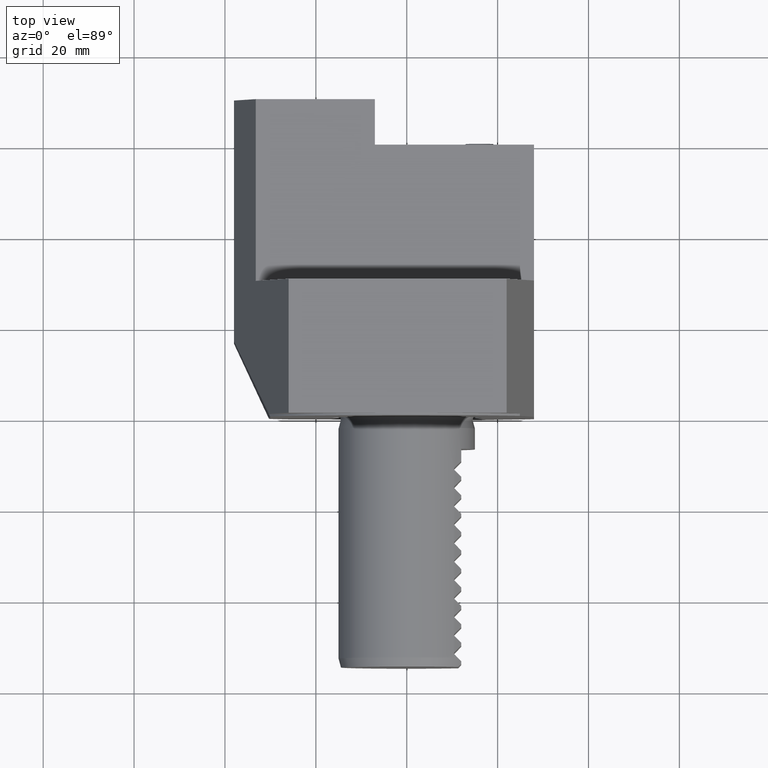
[diagram: clean part render]
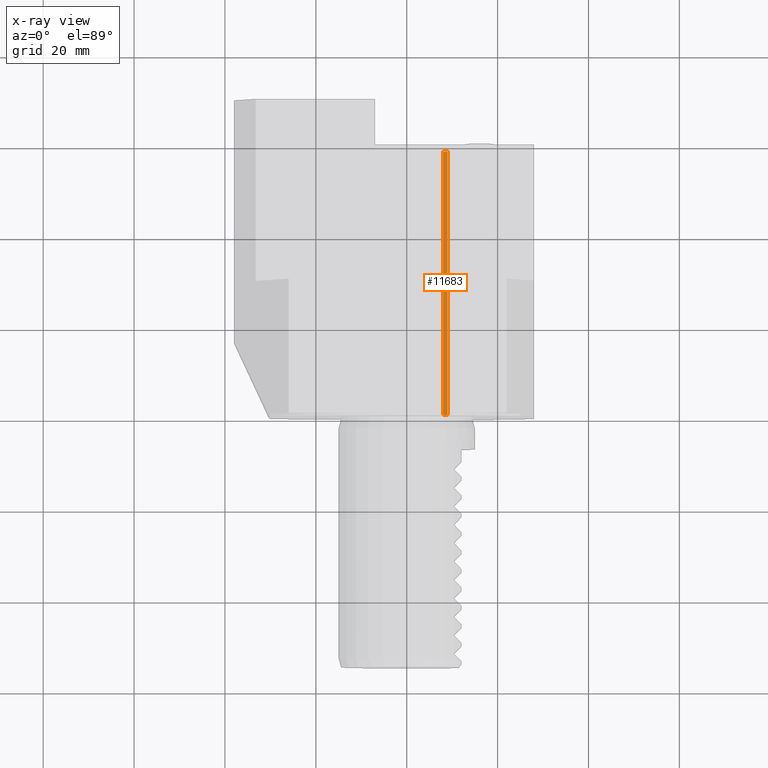
[diagram: x-ray — body ghosted, one internal face saturated and labeled with its STEP entity id]
A machine part, top view, then the same camera in x-ray: the body is ghosted and one INTERNAL B-rep face — a face not visible from any outside direction — is saturated and labeled: STEP entity #11683.
In plain terms, the highlighted planar face has unit normal (-0, 0, 1).
Its self-contained STEP definition (entity closure, byte-faithful):
#146 = FACE_OUTER_BOUND ( 'NONE', #8801, .T. ) ;
#441 = VERTEX_POINT ( 'NONE', #3247 ) ;
#484 = CARTESIAN_POINT ( 'NONE',  ( 7.999999999999991118, 0.9999999999999904521, -24.29999999999998295 ) ) ;
#1347 = VECTOR ( 'NONE', #16303, 1000.000000000000000 ) ;
#1457 = CARTESIAN_POINT ( 'NONE',  ( 69.16643582596528006, 0.9999999999999904521, -24.29999999999998295 ) ) ;
#2115 = EDGE_CURVE ( 'NONE', #441, #3762, #4510, .T. ) ;
#2196 = CARTESIAN_POINT ( 'NONE',  ( 69.16643582596528006, 58.99999999999998579, -24.29999999999998295 ) ) ;
#2717 = DIRECTION ( 'NONE',  ( -1.000000000000000000, 8.090834635592246831E-33, -1.493403808601844500E-49 ) ) ;
#2856 = PLANE ( 'NONE',  #6642 ) ;
#3247 = CARTESIAN_POINT ( 'NONE',  ( 9.000000000000001776, 0.9999999999999904521, -24.29999999999998295 ) ) ;
#3762 = VERTEX_POINT ( 'NONE', #11370 ) ;
#4116 = DIRECTION ( 'NONE',  ( -1.493403808601844500E-49, 1.208288325956117799E-81, 1.000000000000000000 ) ) ;
#4510 = LINE ( 'NONE', #11927, #14870 ) ;
#4576 = VERTEX_POINT ( 'NONE', #484 ) ;
#4896 = LINE ( 'NONE', #5064, #8833 ) ;
#5064 = CARTESIAN_POINT ( 'NONE',  ( 69.16643582596528006, 0.9999999999999904521, -24.29999999999998295 ) ) ;
#6592 = ORIENTED_EDGE ( 'NONE', *, *, #15625, .F. ) ;
#6642 = AXIS2_PLACEMENT_3D ( 'NONE', #1457, #4116, #14071 ) ;
#6935 = DIRECTION ( 'NONE',  ( -1.295371175675670527E-16, 1.000000000000000000, -1.934512247307095566E-65 ) ) ;
#7275 = DIRECTION ( 'NONE',  ( -1.000000000000000000, 8.090834635592246831E-33, -1.493403808601844500E-49 ) ) ;
#7390 = CARTESIAN_POINT ( 'NONE',  ( 7.999999999999991118, 60.00000000000000000, -24.29999999999998295 ) ) ;
#8801 = EDGE_LOOP ( 'NONE', ( #10893, #15182, #6592, #13257 ) ) ;
#8833 = VECTOR ( 'NONE', #2717, 1000.000000000000000 ) ;
#9061 = CARTESIAN_POINT ( 'NONE',  ( 7.999999999999991118, 58.99999999999998579, -24.29999999999998295 ) ) ;
#10366 = VERTEX_POINT ( 'NONE', #9061 ) ;
#10893 = ORIENTED_EDGE ( 'NONE', *, *, #15783, .T. ) ;
#11370 = CARTESIAN_POINT ( 'NONE',  ( 8.999999999999994671, 58.99999999999998579, -24.29999999999998295 ) ) ;
#11683 = ADVANCED_FACE ( 'NONE', ( #146 ), #2856, .T. ) ;
#11927 = CARTESIAN_POINT ( 'NONE',  ( 9.000000000000001776, 0.9999999999999826805, -24.29999999999998295 ) ) ;
#12056 = EDGE_CURVE ( 'NONE', #10366, #4576, #15042, .T. ) ;
#13257 = ORIENTED_EDGE ( 'NONE', *, *, #2115, .T. ) ;
#14071 = DIRECTION ( 'NONE',  ( 1.000000000000000000, 0.000000000000000000, 1.493403808601844500E-49 ) ) ;
#14870 = VECTOR ( 'NONE', #6935, 1000.000000000000000 ) ;
#15042 = LINE ( 'NONE', #7390, #1347 ) ;
#15182 = ORIENTED_EDGE ( 'NONE', *, *, #12056, .T. ) ;
#15619 = VECTOR ( 'NONE', #7275, 1000.000000000000000 ) ;
#15625 = EDGE_CURVE ( 'NONE', #441, #4576, #4896, .T. ) ;
#15783 = EDGE_CURVE ( 'NONE', #3762, #10366, #15834, .T. ) ;
#15834 = LINE ( 'NONE', #2196, #15619 ) ;
#16303 = DIRECTION ( 'NONE',  ( -8.090834635592245463E-33, -1.000000000000000000, 0.000000000000000000 ) ) ;